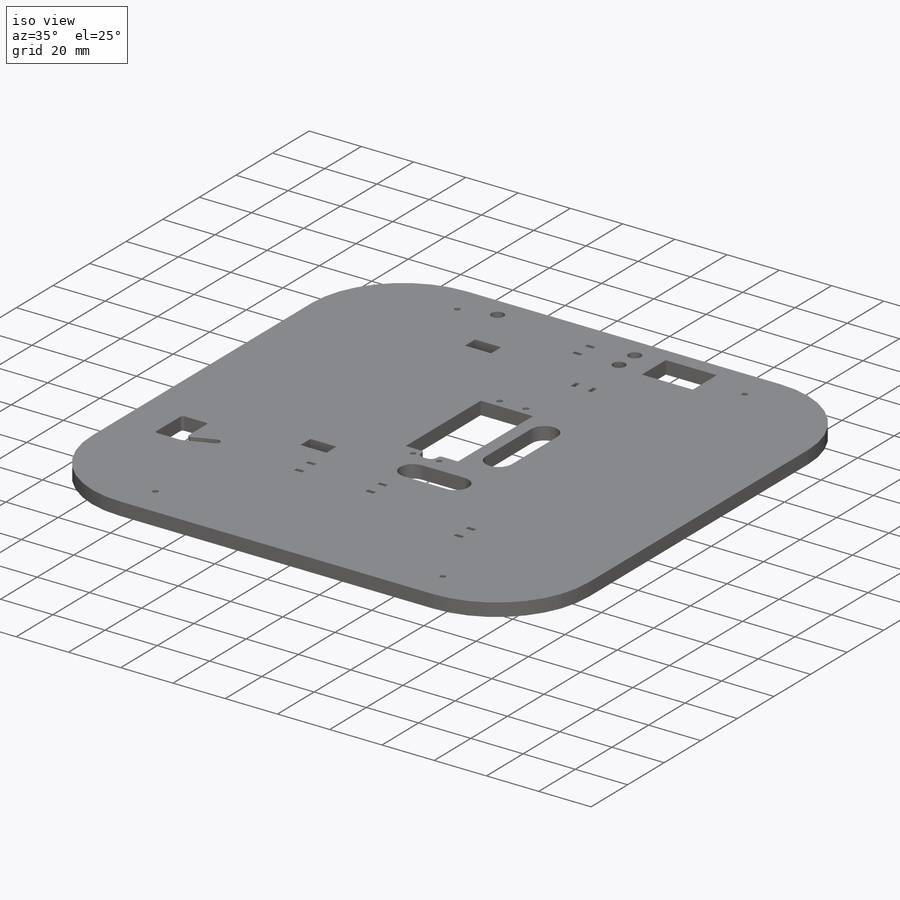
[diagram: iso view]
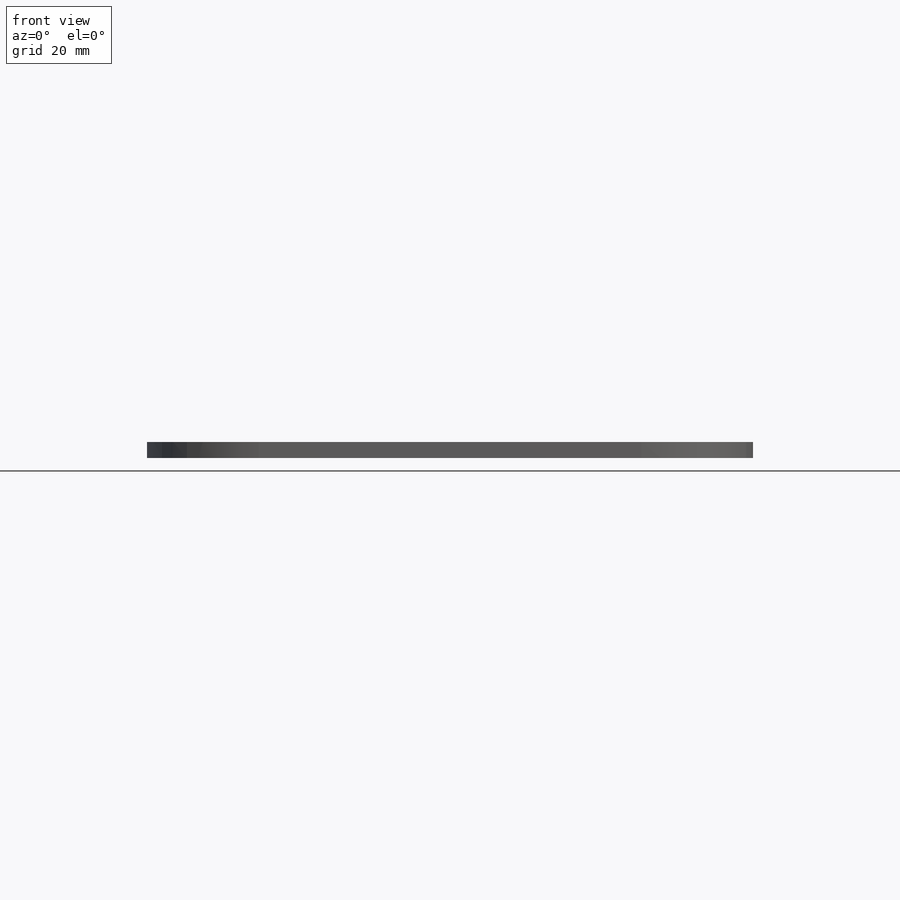
[diagram: front view]
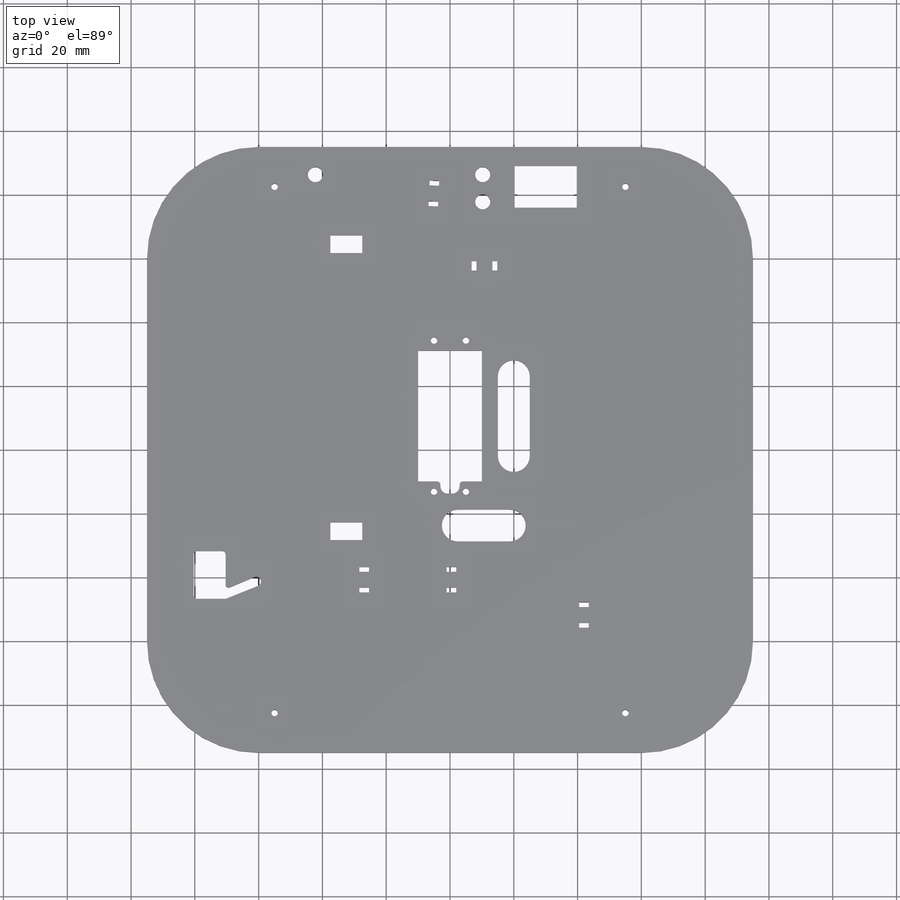
[diagram: top view]
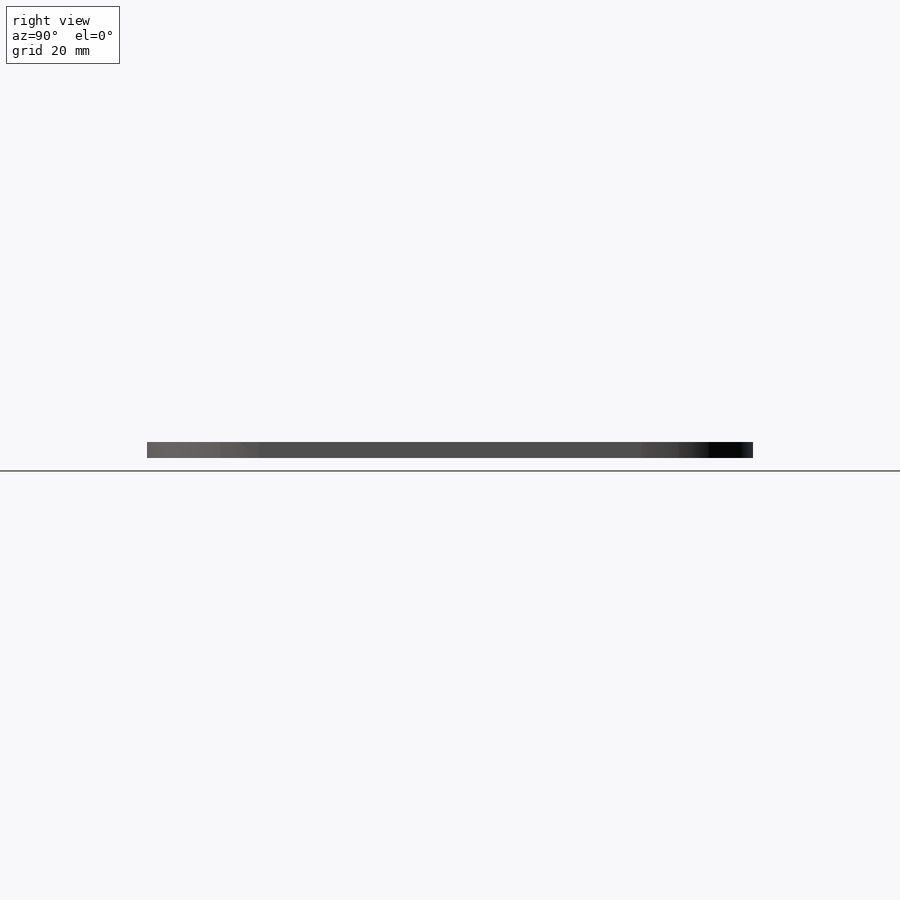
[diagram: right view]
SOLIDWORKS PART (.sldprt)
format: sldprt  version: not decoded by parser v0  size: 546,816 bytes
history: native  units: mm
features: sketch x11, cut_extrude x10, plane x3, extrude x3, fillet x2, material x1 (+9 scaffold rows collapsed)
feature tree (39):
  scaffold x9  (default folders/planes/origin — collapsed)
  material  "Acrílico (médio-alto impacto)"
  plane  "Plano frontal"
  plane  "Plano superior"
  plane  "Plano direito"
  sketch  "Esboço1"  dims[D1=190.0mm D2=190.0mm]
  extrude  "Ressalto-extrusão1"  Depth=5mm
  sketch  "Esboço2"  dims[c1.D4=2.3mm c1.D5=1.0mm c1.D6=2.0mm c1.D9=2.0mm c1.D1=41.0mm c1.D2=20.0mm c1.D3=10.0mm c1.D7=3.2mm c1.D8=5.0mm c1.D10=5.0mm c1.D11=3.2mm c2.D6=2.3mm c2.D7=1.0mm c2.D8=1.5mm c2.D11=1.5mm c2.D1=41.0mm c2.D2=20.0mm c2.D3=3.8mm c2.D4=6.0mm c2.D5=10.0mm c2.D9=3.2mm c2.D10=5.0mm c2.D12=5.0mm c2.D13=3.2mm c3.D1=5.0mm c3.D2=~4.384236mm c4.D1=10.6mm]
  cut_extrude  "Corte-extrusão1"  [1 undecoded]
  sketch  "Esboço3"  dims[c1.D1=2.0mm c1.D2=2.0mm c1.D3=2.0mm c2.D2=12.5mm c2.D3=110.0mm c3.D2=165.0mm]
  cut_extrude  "Corte-extrusão2"  Depth=5mm
  fillet  "Filete1"  Radius=35mm
  sketch  "Esboço4"  dims[D1=19.5mm D2=13.1mm D3=25.0mm]
  cut_extrude  "Corte-extrusão3"  [1 undecoded]
  sketch  "Sketch1"  dims[c1.D1=4.7mm c1.D4=4.7mm c1.D2=5.0mm c1.D3=10.0mm c2.D1=8.0mm]
  cut_extrude  "Cut-Extrude1"  Depth=10mm
  sketch  "Esboço8"  dims[c1.D5=5.0mm c1.D1=5.5mm c1.D2=~42.499757mm c1.D3=~27.500104mm c1.D4=10.0mm c2.D2=~44.999757mm c2.D5=75.5mm]
  cut_extrude  "Corte-extrusão4"  [1 undecoded]
  sketch  "Esboço10"  dims[D3=3.0mm D5=1.0mm D6=1.0mm D1=10.0mm D2=15.0mm D4=3.0mm]
  cut_extrude  "Corte-extrusão5"  [1 undecoded]
  sketch  "Esboço11"  dims[c1.D1=3.0mm c1.D4=3.0mm c2.D1=74.0mm c2.D2=37.0mm c2.D3=3.0mm c2.D5=68.0mm]
  cut_extrude  "Corte-extrusão6"  [1 undecoded]
  fillet  "Filete2"  Radius=1mm
  sketch  "Esboço12"  dims[c1.D1=15.0mm c1.D2=15.0mm c1.D3=15.0mm c2.D2=5.0mm c2.D3=~17.903006mm c3.D3=90.0deg c3.D2=16.0mm c3.D1=25.0mm c4.D3=20.0mm]
  cut_extrude  "Corte-extrusão7"  [1 undecoded]
  sketch  "Esboço13"
  extrude  "Bloco3"  Depth=5mm
  cut_extrude  "Corte-extrusão8"  [1 undecoded]
  sketch  "Esboço15"
  extrude  "Bloco4"  Depth=5mm
  cut_extrude  "Corte-extrusão9"  [1 undecoded]
decode coverage: 16 of 26 modeling features carry decoded parameters
note: ~ marks probable driven/reference dimensions
note: 8 parameter values undecoded
summary: no parameter record found for 8 features
note: suppression state not decoded; provenance and decode notes live in map.json
